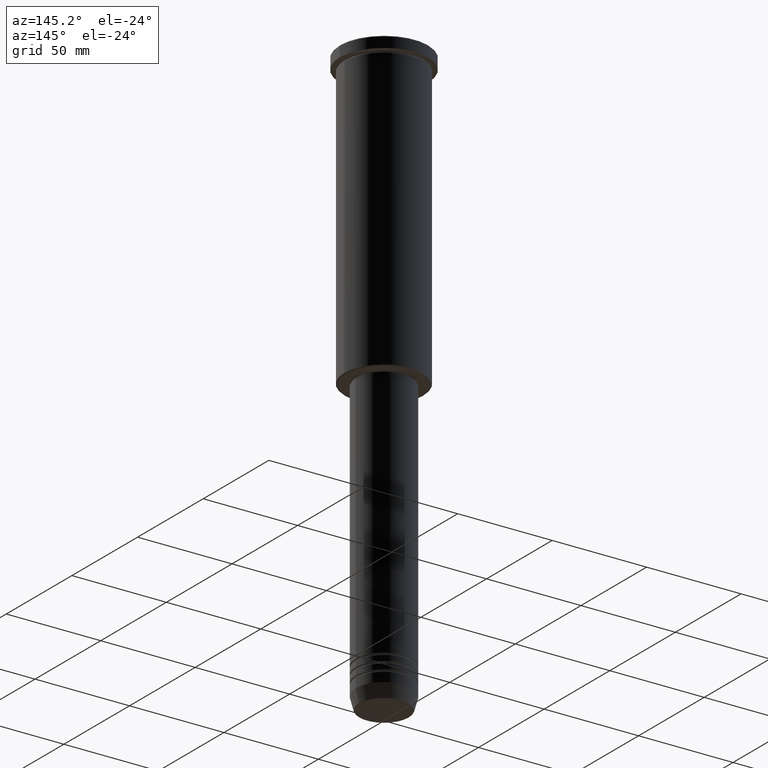
[diagram: clean part render]
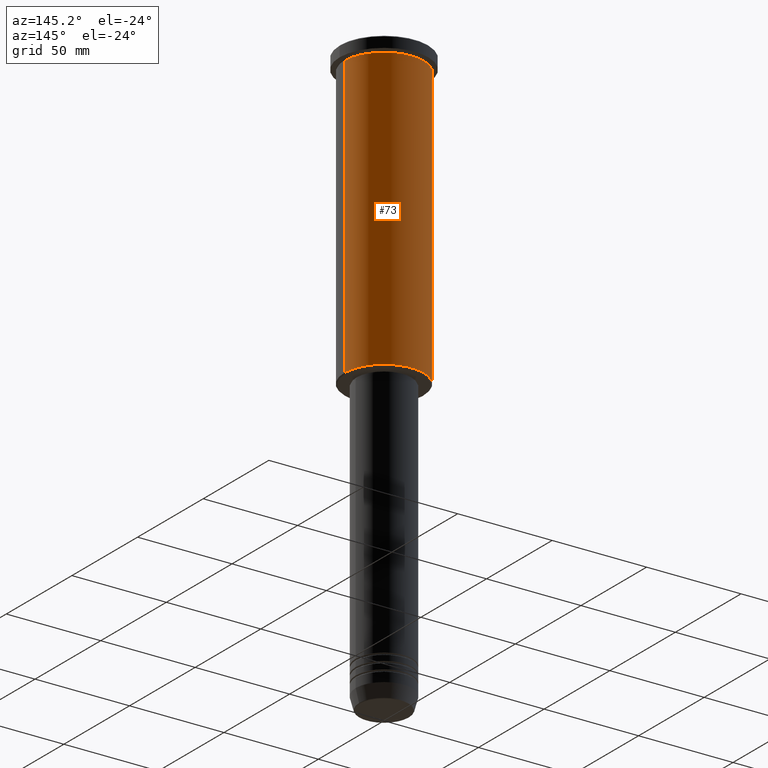
[diagram: same view with one face highlighted and labeled with its STEP entity id]
A machine part, auxiliary view. The second image highlights one B-rep face of the part: STEP entity #73.
In plain terms, the highlighted cylindrical surface (partial cylindrical patch) has radius 21 mm, axis along (-0, -0, 1).
Its self-contained STEP definition (entity closure, byte-faithful):
#3 = VERTEX_POINT ( 'NONE', #146 ) ;
#11 = CARTESIAN_POINT ( 'NONE',  ( 0.000000000000000000, 0.000000000000000000, -155.5000000000000000 ) ) ;
#73 = ADVANCED_FACE ( 'NONE', ( #259 ), #1069, .T. ) ;
#118 = CARTESIAN_POINT ( 'NONE',  ( -21.00000000000000000, 2.571758278209441661E-15, -155.5000000000000000 ) ) ;
#139 = CIRCLE ( 'NONE', #304, 21.00000000000000000 ) ;
#141 = ORIENTED_EDGE ( 'NONE', *, *, #754, .F. ) ;
#146 = CARTESIAN_POINT ( 'NONE',  ( 21.00000000000000000, 0.000000000000000000, -6.999999999999993783 ) ) ;
#178 = CARTESIAN_POINT ( 'NONE',  ( 21.00000000000000000, 0.000000000000000000, 0.000000000000000000 ) ) ;
#213 = ORIENTED_EDGE ( 'NONE', *, *, #1126, .F. ) ;
#259 = FACE_OUTER_BOUND ( 'NONE', #782, .T. ) ;
#304 = AXIS2_PLACEMENT_3D ( 'NONE', #975, #329, #1088 ) ;
#329 = DIRECTION ( 'NONE',  ( -0.000000000000000000, -0.000000000000000000, 1.000000000000000000 ) ) ;
#339 = ORIENTED_EDGE ( 'NONE', *, *, #1054, .T. ) ;
#340 = CARTESIAN_POINT ( 'NONE',  ( -21.00000000000000000, 2.571758278209441661E-15, 0.000000000000000000 ) ) ;
#358 = DIRECTION ( 'NONE',  ( -0.000000000000000000, -0.000000000000000000, 1.000000000000000000 ) ) ;
#369 = CARTESIAN_POINT ( 'NONE',  ( 21.00000000000000000, 0.000000000000000000, -155.5000000000000000 ) ) ;
#388 = DIRECTION ( 'NONE',  ( 1.000000000000000000, 0.000000000000000000, 0.000000000000000000 ) ) ;
#410 = AXIS2_PLACEMENT_3D ( 'NONE', #11, #358, #1026 ) ;
#534 = CIRCLE ( 'NONE', #410, 21.00000000000000000 ) ;
#581 = VERTEX_POINT ( 'NONE', #118 ) ;
#638 = DIRECTION ( 'NONE',  ( -0.000000000000000000, -0.000000000000000000, 1.000000000000000000 ) ) ;
#652 = LINE ( 'NONE', #178, #705 ) ;
#673 = VECTOR ( 'NONE', #713, 1000.000000000000000 ) ;
#674 = AXIS2_PLACEMENT_3D ( 'NONE', #1005, #763, #388 ) ;
#682 = ORIENTED_EDGE ( 'NONE', *, *, #1183, .T. ) ;
#705 = VECTOR ( 'NONE', #638, 1000.000000000000000 ) ;
#713 = DIRECTION ( 'NONE',  ( -0.000000000000000000, -0.000000000000000000, 1.000000000000000000 ) ) ;
#754 = EDGE_CURVE ( 'NONE', #1002, #3, #652, .T. ) ;
#763 = DIRECTION ( 'NONE',  ( -0.000000000000000000, -0.000000000000000000, 1.000000000000000000 ) ) ;
#782 = EDGE_LOOP ( 'NONE', ( #682, #339, #213, #141 ) ) ;
#813 = LINE ( 'NONE', #340, #673 ) ;
#836 = CARTESIAN_POINT ( 'NONE',  ( -21.00000000000000000, 2.571758278209441661E-15, -6.999999999999993783 ) ) ;
#975 = CARTESIAN_POINT ( 'NONE',  ( 0.000000000000000000, 0.000000000000000000, -6.999999999999993783 ) ) ;
#993 = VERTEX_POINT ( 'NONE', #836 ) ;
#1002 = VERTEX_POINT ( 'NONE', #369 ) ;
#1005 = CARTESIAN_POINT ( 'NONE',  ( 0.000000000000000000, 0.000000000000000000, 0.000000000000000000 ) ) ;
#1026 = DIRECTION ( 'NONE',  ( -1.000000000000000000, 0.000000000000000000, 0.000000000000000000 ) ) ;
#1054 = EDGE_CURVE ( 'NONE', #581, #993, #813, .T. ) ;
#1069 = CYLINDRICAL_SURFACE ( 'NONE', #674, 21.00000000000000000 ) ;
#1088 = DIRECTION ( 'NONE',  ( 1.000000000000000000, 0.000000000000000000, 0.000000000000000000 ) ) ;
#1126 = EDGE_CURVE ( 'NONE', #3, #993, #139, .T. ) ;
#1183 = EDGE_CURVE ( 'NONE', #1002, #581, #534, .T. ) ;